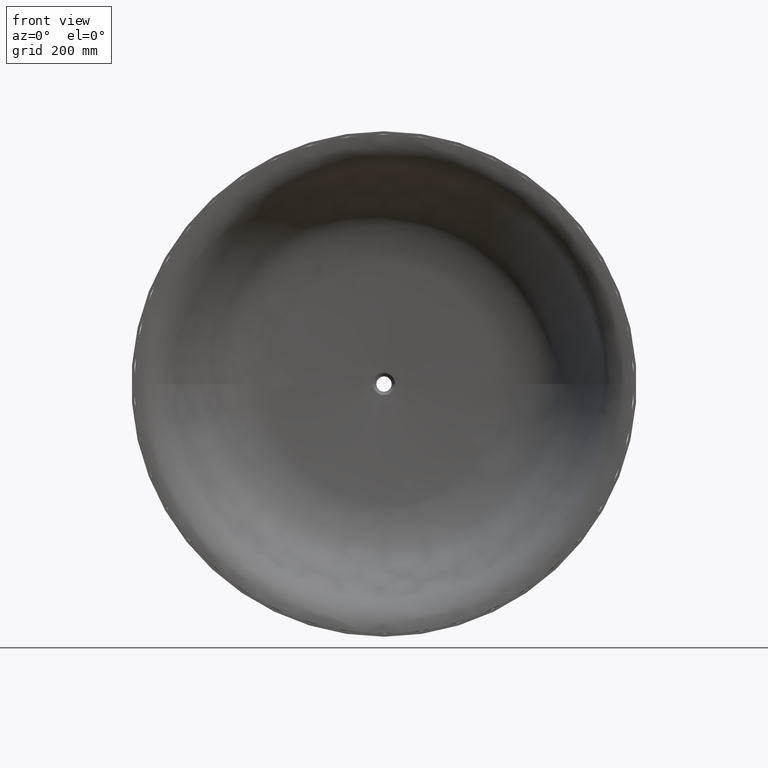
[diagram: clean part render]
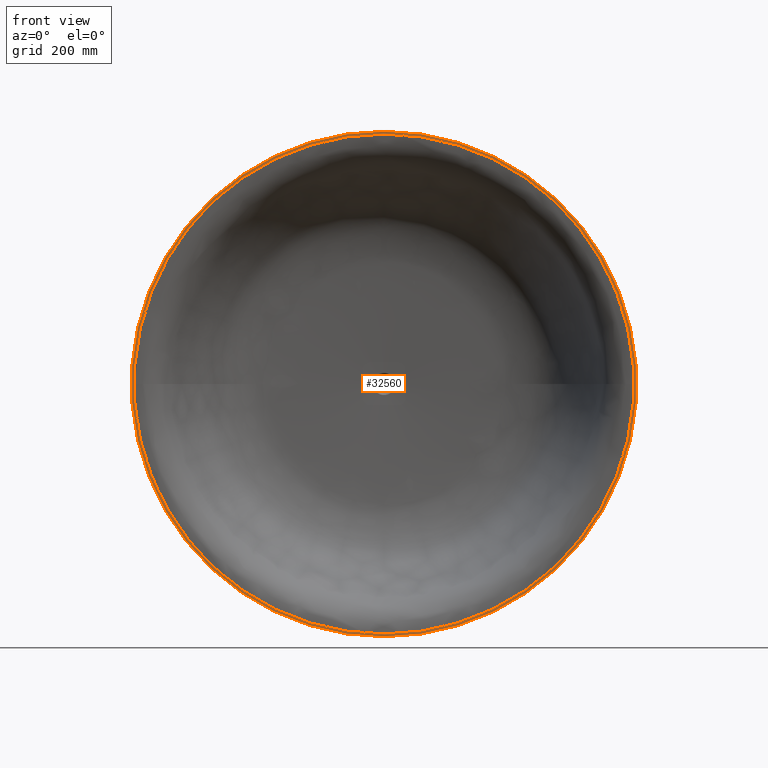
[diagram: same view with one face highlighted and labeled with its STEP entity id]
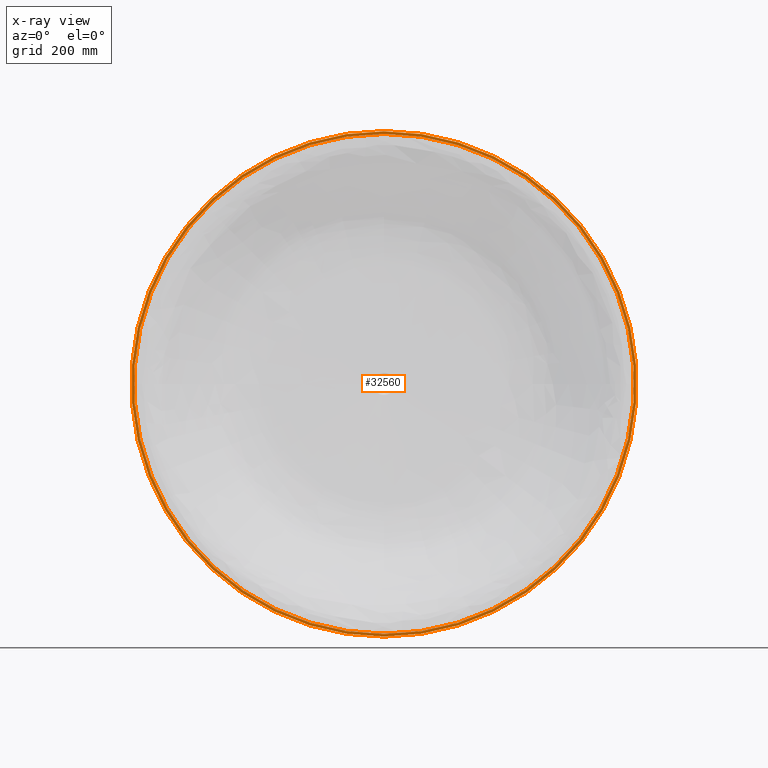
[diagram: x-ray of the same camera — body ghosted, the highlighted face saturated]
A machine part, front view. The second image highlights one B-rep face of the part: STEP entity #32560.
The next image is the same camera in x-ray: the body ghosted, the highlighted face saturated — about 0% of this face is hidden behind the body in this view.
In plain terms, the highlighted planar face has unit normal (0, 1, 0).
Its self-contained STEP definition (entity closure, byte-faithful):
#1656 = CARTESIAN_POINT ( 'NONE',  ( 0.0000000000000000000, 0.0000000000000000000, -910.0000000000000000 ) ) ;
#1963 = VERTEX_POINT ( 'NONE', #8160 ) ;
#3606 = VERTEX_POINT ( 'NONE', #1656 ) ;
#4954 = CARTESIAN_POINT ( 'NONE',  ( 0.0000000000000000000, 0.0000000000000000000, 0.0000000000000000000 ) ) ;
#5909 = CIRCLE ( 'NONE', #48816, 910.0000000000000000 ) ;
#5946 = DIRECTION ( 'NONE',  ( 0.0000000000000000000, 0.0000000000000000000, 1.000000000000000000 ) ) ;
#6195 = DIRECTION ( 'NONE',  ( 0.0000000000000000000, 1.000000000000000000, 0.0000000000000000000 ) ) ;
#8160 = CARTESIAN_POINT ( 'NONE',  ( 1.114428587224091400E-013, 0.0000000000000000000, 910.0000000000000000 ) ) ;
#9859 = DIRECTION ( 'NONE',  ( 0.0000000000000000000, 0.0000000000000000000, 1.000000000000000000 ) ) ;
#13035 = EDGE_CURVE ( 'NONE', #1963, #3606, #5909, .T. ) ;
#13349 = CARTESIAN_POINT ( 'NONE',  ( 0.0000000000000000000, 0.0000000000000000000, 0.0000000000000000000 ) ) ;
#16458 = FACE_BOUND ( 'NONE', #45876, .T. ) ;
#17293 = EDGE_CURVE ( 'NONE', #3606, #1963, #29425, .T. ) ;
#18500 = DIRECTION ( 'NONE',  ( 0.0000000000000000000, 1.000000000000000000, 0.0000000000000000000 ) ) ;
#19015 = EDGE_CURVE ( 'NONE', #27332, #34741, #67097, .T. ) ;
#19278 = DIRECTION ( 'NONE',  ( 0.0000000000000000000, 0.0000000000000000000, 1.000000000000000000 ) ) ;
#22018 = ORIENTED_EDGE ( 'NONE', *, *, #13035, .F. ) ;
#27332 = VERTEX_POINT ( 'NONE', #47526 ) ;
#27905 = ORIENTED_EDGE ( 'NONE', *, *, #63995, .T. ) ;
#28382 = CARTESIAN_POINT ( 'NONE',  ( 0.0000000000000000000, 0.0000000000000000000, 0.0000000000000000000 ) ) ;
#29425 = CIRCLE ( 'NONE', #52739, 910.0000000000000000 ) ;
#29805 = AXIS2_PLACEMENT_3D ( 'NONE', #4954, #18500, #44443 ) ;
#30243 = FACE_OUTER_BOUND ( 'NONE', #44854, .T. ) ;
#32560 = ADVANCED_FACE ( 'NONE', ( #30243, #16458 ), #74913, .F. ) ;
#34741 = VERTEX_POINT ( 'NONE', #40409 ) ;
#37946 = DIRECTION ( 'NONE',  ( 0.0000000000000000000, 1.000000000000000000, 0.0000000000000000000 ) ) ;
#38804 = ORIENTED_EDGE ( 'NONE', *, *, #19015, .T. ) ;
#39018 = ORIENTED_EDGE ( 'NONE', *, *, #17293, .F. ) ;
#40409 = CARTESIAN_POINT ( 'NONE',  ( 1.102182119232617800E-013, 0.0000000000000000000, 900.0000000000000000 ) ) ;
#41369 = CARTESIAN_POINT ( 'NONE',  ( 0.0000000000000000000, 0.0000000000000000000, 0.0000000000000000000 ) ) ;
#44443 = DIRECTION ( 'NONE',  ( 0.0000000000000000000, 0.0000000000000000000, 1.000000000000000000 ) ) ;
#44854 = EDGE_LOOP ( 'NONE', ( #39018, #22018 ) ) ;
#45876 = EDGE_LOOP ( 'NONE', ( #38804, #27905 ) ) ;
#47221 = AXIS2_PLACEMENT_3D ( 'NONE', #28382, #74657, #69467 ) ;
#47526 = CARTESIAN_POINT ( 'NONE',  ( 0.0000000000000000000, 0.0000000000000000000, -900.0000000000000000 ) ) ;
#48816 = AXIS2_PLACEMENT_3D ( 'NONE', #73169, #37946, #9859 ) ;
#52739 = AXIS2_PLACEMENT_3D ( 'NONE', #41369, #6195, #5946 ) ;
#53805 = CIRCLE ( 'NONE', #75297, 900.0000000000000000 ) ;
#54473 = DIRECTION ( 'NONE',  ( 0.0000000000000000000, 1.000000000000000000, 0.0000000000000000000 ) ) ;
#63995 = EDGE_CURVE ( 'NONE', #34741, #27332, #53805, .T. ) ;
#67097 = CIRCLE ( 'NONE', #29805, 900.0000000000000000 ) ;
#69467 = DIRECTION ( 'NONE',  ( 0.0000000000000000000, -0.0000000000000000000, 1.000000000000000000 ) ) ;
#73169 = CARTESIAN_POINT ( 'NONE',  ( 0.0000000000000000000, 0.0000000000000000000, 0.0000000000000000000 ) ) ;
#74657 = DIRECTION ( 'NONE',  ( 0.0000000000000000000, 1.000000000000000000, 0.0000000000000000000 ) ) ;
#74913 = PLANE ( 'NONE',  #47221 ) ;
#75297 = AXIS2_PLACEMENT_3D ( 'NONE', #13349, #54473, #19278 ) ;